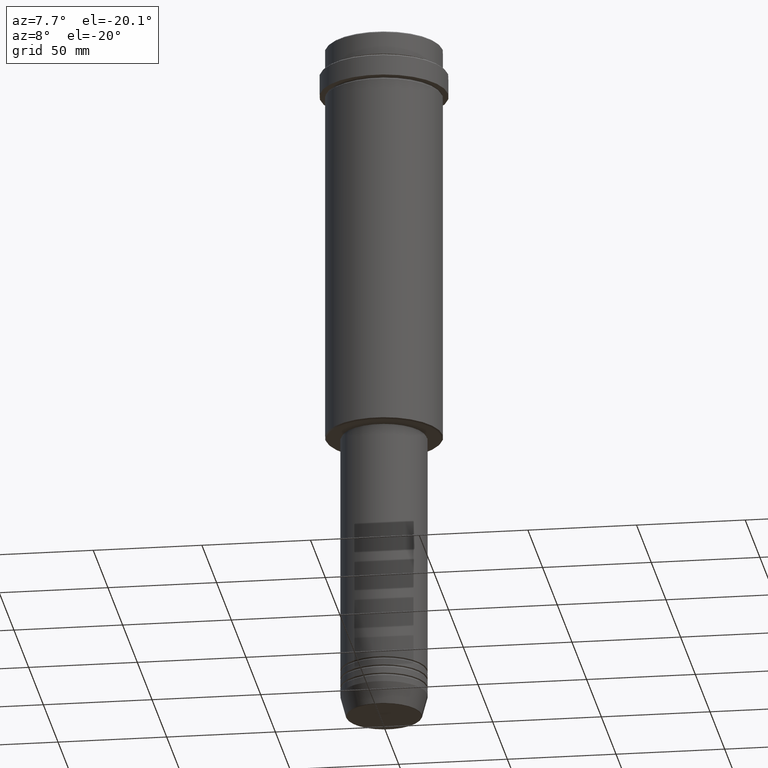
[diagram: clean part render]
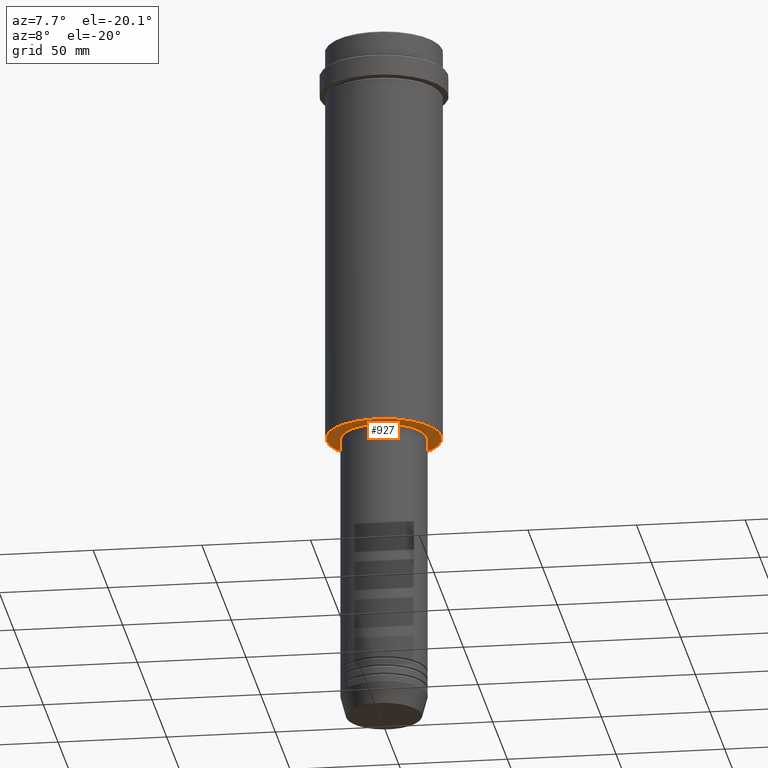
[diagram: same view with one face highlighted and labeled with its STEP entity id]
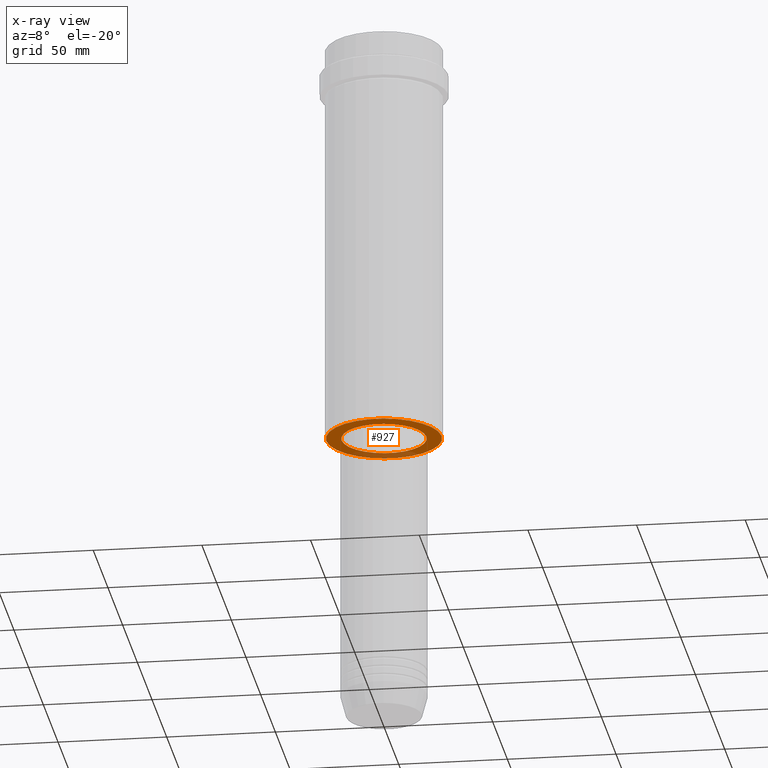
[diagram: x-ray of the same camera — body ghosted, the highlighted face saturated]
A machine part, auxiliary view. The second image highlights one B-rep face of the part: STEP entity #927.
The next image is the same camera in x-ray: the body ghosted, the highlighted face saturated — about 20% of this face is hidden behind the body in this view.
In plain terms, the highlighted planar face has unit normal (0, 0, -1).
Its self-contained STEP definition (entity closure, byte-faithful):
#36 = CIRCLE ( 'NONE', #853, 19.49999999999999289 ) ;
#57 = DIRECTION ( 'NONE',  ( -1.000000000000000000, 0.000000000000000000, 0.000000000000000000 ) ) ;
#63 = AXIS2_PLACEMENT_3D ( 'NONE', #1100, #84, #183 ) ;
#84 = DIRECTION ( 'NONE',  ( 0.000000000000000000, 0.000000000000000000, -1.000000000000000000 ) ) ;
#101 = FACE_OUTER_BOUND ( 'NONE', #230, .T. ) ;
#108 = AXIS2_PLACEMENT_3D ( 'NONE', #209, #545, #1089 ) ;
#176 = CARTESIAN_POINT ( 'NONE',  ( -19.49999999999999289, 2.388061258337338150E-15, -187.9999999999999716 ) ) ;
#183 = DIRECTION ( 'NONE',  ( -1.000000000000000000, 0.000000000000000000, 0.000000000000000000 ) ) ;
#203 = EDGE_CURVE ( 'NONE', #285, #643, #302, .T. ) ;
#209 = CARTESIAN_POINT ( 'NONE',  ( 0.000000000000000000, 27.00000000000000355, -188.0000000000000000 ) ) ;
#230 = EDGE_LOOP ( 'NONE', ( #1101, #1005 ) ) ;
#264 = AXIS2_PLACEMENT_3D ( 'NONE', #891, #301, #1313 ) ;
#285 = VERTEX_POINT ( 'NONE', #328 ) ;
#301 = DIRECTION ( 'NONE',  ( -0.000000000000000000, -0.000000000000000000, 1.000000000000000000 ) ) ;
#302 = CIRCLE ( 'NONE', #884, 26.49999999999996803 ) ;
#328 = CARTESIAN_POINT ( 'NONE',  ( 26.49999999999996803, 0.000000000000000000, -188.0000000000000000 ) ) ;
#390 = EDGE_CURVE ( 'NONE', #1291, #403, #36, .T. ) ;
#403 = VERTEX_POINT ( 'NONE', #176 ) ;
#454 = CARTESIAN_POINT ( 'NONE',  ( -26.49999999999996803, 3.275930187719167974E-15, -188.0000000000000000 ) ) ;
#518 = ORIENTED_EDGE ( 'NONE', *, *, #903, .T. ) ;
#531 = DIRECTION ( 'NONE',  ( 0.000000000000000000, 0.000000000000000000, -1.000000000000000000 ) ) ;
#545 = DIRECTION ( 'NONE',  ( 0.000000000000000000, 0.000000000000000000, -1.000000000000000000 ) ) ;
#643 = VERTEX_POINT ( 'NONE', #454 ) ;
#752 = FACE_BOUND ( 'NONE', #1176, .T. ) ;
#807 = EDGE_CURVE ( 'NONE', #643, #285, #1385, .T. ) ;
#811 = CARTESIAN_POINT ( 'NONE',  ( 0.000000000000000000, 0.000000000000000000, -188.0000000000000000 ) ) ;
#853 = AXIS2_PLACEMENT_3D ( 'NONE', #1322, #937, #1372 ) ;
#884 = AXIS2_PLACEMENT_3D ( 'NONE', #811, #531, #57 ) ;
#891 = CARTESIAN_POINT ( 'NONE',  ( 0.000000000000000000, 0.000000000000000000, -187.9999999999999716 ) ) ;
#903 = EDGE_CURVE ( 'NONE', #403, #1291, #954, .T. ) ;
#927 = ADVANCED_FACE ( 'NONE', ( #101, #752 ), #1080, .T. ) ;
#937 = DIRECTION ( 'NONE',  ( -0.000000000000000000, -0.000000000000000000, 1.000000000000000000 ) ) ;
#954 = CIRCLE ( 'NONE', #264, 19.49999999999999289 ) ;
#1005 = ORIENTED_EDGE ( 'NONE', *, *, #807, .T. ) ;
#1080 = PLANE ( 'NONE',  #108 ) ;
#1089 = DIRECTION ( 'NONE',  ( -1.000000000000000000, 0.000000000000000000, -0.000000000000000000 ) ) ;
#1100 = CARTESIAN_POINT ( 'NONE',  ( 0.000000000000000000, 0.000000000000000000, -188.0000000000000000 ) ) ;
#1101 = ORIENTED_EDGE ( 'NONE', *, *, #203, .T. ) ;
#1176 = EDGE_LOOP ( 'NONE', ( #1365, #518 ) ) ;
#1291 = VERTEX_POINT ( 'NONE', #1404 ) ;
#1313 = DIRECTION ( 'NONE',  ( 1.000000000000000000, 0.000000000000000000, 0.000000000000000000 ) ) ;
#1322 = CARTESIAN_POINT ( 'NONE',  ( 0.000000000000000000, 0.000000000000000000, -187.9999999999999716 ) ) ;
#1365 = ORIENTED_EDGE ( 'NONE', *, *, #390, .T. ) ;
#1372 = DIRECTION ( 'NONE',  ( 1.000000000000000000, 0.000000000000000000, 0.000000000000000000 ) ) ;
#1385 = CIRCLE ( 'NONE', #63, 26.49999999999996803 ) ;
#1404 = CARTESIAN_POINT ( 'NONE',  ( 19.49999999999999289, 0.000000000000000000, -187.9999999999999716 ) ) ;